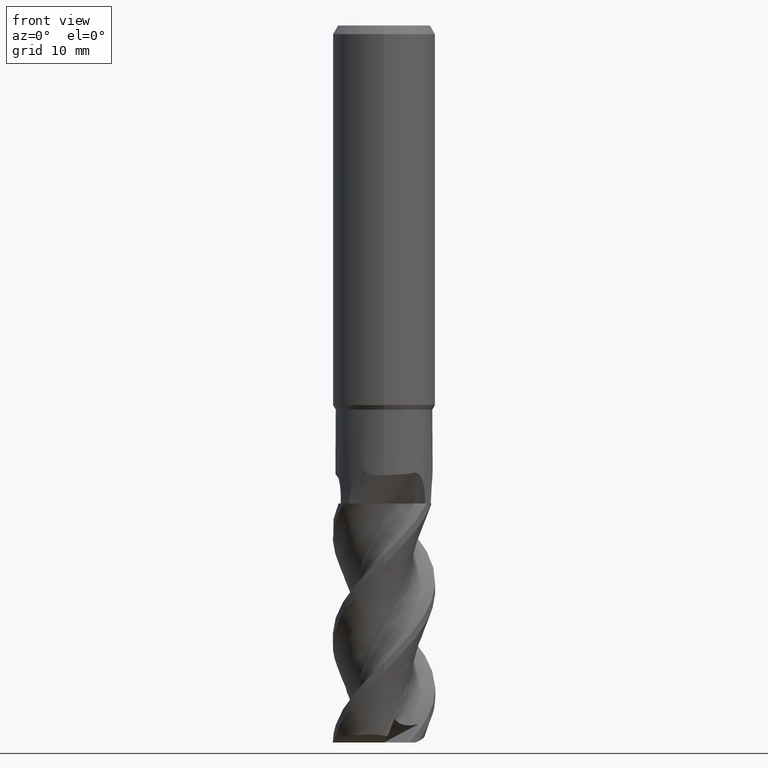
[diagram: clean part render]
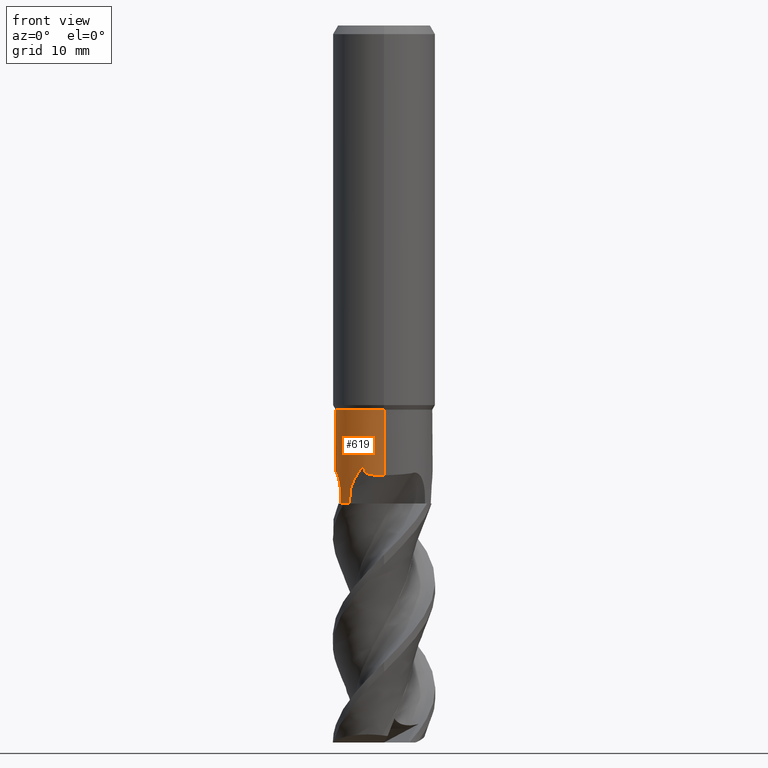
[diagram: same view with one face highlighted and labeled with its STEP entity id]
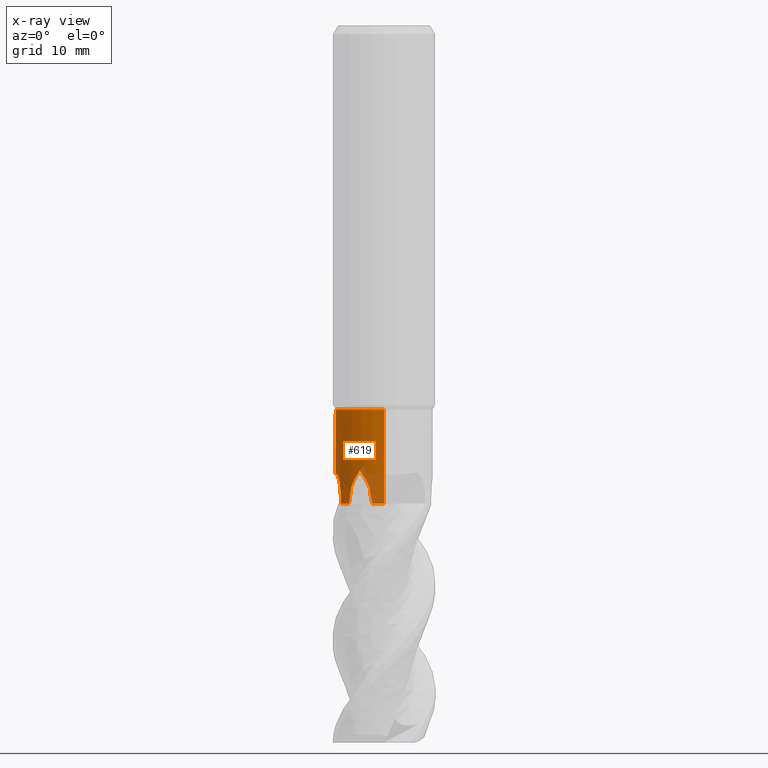
[diagram: x-ray of the same camera — body ghosted, the highlighted face saturated]
A machine part, front view. The second image highlights one B-rep face of the part: STEP entity #619.
The next image is the same camera in x-ray: the body ghosted, the highlighted face saturated — about 12% of this face is hidden behind the body in this view.
In plain terms, the highlighted cylindrical surface (partial cylindrical patch) has radius 5.7 mm, axis along (-0, -0, 1).
Its self-contained STEP definition (entity closure, byte-faithful):
#493=EDGE_CURVE('',#731,#797,#1363,.T.);
#583=EDGE_CURVE('',#797,#1101,#1462,.T.);
#591=VERTEX_POINT('',#1470);
#619=ADVANCED_FACE('',(#1501),#1502,.T.);
#623=EDGE_CURVE('',#1053,#1059,#1506,.T.);
#681=VERTEX_POINT('',#1566);
#693=VERTEX_POINT('',#1578);
#709=EDGE_CURVE('',#875,#591,#1594,.T.);
#731=VERTEX_POINT('',#1618);
#781=EDGE_CURVE('',#681,#1167,#1674,.T.);
#797=VERTEX_POINT('',#1691);
#853=VERTEX_POINT('',#1754);
#865=EDGE_CURVE('',#1059,#681,#1767,.T.);
#867=EDGE_CURVE('',#1053,#975,#1769,.T.);
#875=VERTEX_POINT('',#1777);
#899=VERTEX_POINT('',#1804);
#935=EDGE_CURVE('',#1101,#899,#1842,.T.);
#975=VERTEX_POINT('',#1883);
#985=EDGE_CURVE('',#853,#975,#1894,.T.);
#1053=VERTEX_POINT('',#1969);
#1059=VERTEX_POINT('',#1976);
#1095=EDGE_CURVE('',#875,#731,#2019,.T.);
#1101=VERTEX_POINT('',#2025);
#1167=VERTEX_POINT('',#2095);
#1227=EDGE_CURVE('',#1167,#693,#2161,.T.);
#1247=EDGE_CURVE('',#899,#853,#2182,.T.);
#1295=EDGE_CURVE('',#693,#591,#2240,.T.);
#1363=B_SPLINE_CURVE_WITH_KNOTS('',3,(#3005,#3006,#3007,#3008,#3009,#3010,#3011,#3012,#3013,#3014,#3015,#3016,#3017,#3018,#3019,#3020,#3021,#3022,#3023,#3024,#3025,#3026,#3027,#3028,#3029,#3030,#3031,#3032,#3033,#3034,#3035,#3036,#3037,#3038,#3039,#3040,#3041,#3042,#3043,#3044,#3045,#3046,#3047,#3048,#3049,#3050),.UNSPECIFIED.,.F.,.F.,(4,2,2,2,2,2,2,2,2,2,2,2,2,2,2,2,2,2,2,2,2,2,4),(0.0,0.0210237726188965,0.0477215632171215,0.0958774368035143,0.220134513835847,0.630328034063689,1.22417807423503,1.26687104570242,1.28349811134588,1.29348722388232,1.30406900676357,1.31802845558431,1.34809899808856,1.48768195524747,1.80150197706546,1.93743436439911,1.97529626330379,1.99556157061178,2.00993350224244,2.02378260851786,2.0426742206262,2.07908239423967,2.16361225765625),.UNSPECIFIED.);
#1462=B_SPLINE_CURVE_WITH_KNOTS('',3,(#3779,#3780,#3781,#3782,#3783,#3784,#3785,#3786,#3787,#3788,#3789,#3790,#3791,#3792,#3793,#3794),.UNSPECIFIED.,.F.,.F.,(4,2,2,2,2,2,2,4),(0.0,0.319208745488988,0.586412959398004,0.903849423234765,1.44463094120811,2.48440049660311,3.67406009573202,4.86729140007779),.UNSPECIFIED.);
#1470=CARTESIAN_POINT('',(-5.061404709849,-2.62137604429779,-56.0000000000008));
#1501=FACE_OUTER_BOUND('',#4032,.T.);
#1502=CYLINDRICAL_SURFACE('',#4033,5.69995);
#1506=B_SPLINE_CURVE_WITH_KNOTS('',3,(#4052,#4053,#4054,#4055),.UNSPECIFIED.,.F.,.F.,(4,4),(0.0,2.38754663582606),.UNSPECIFIED.);
#1566=CARTESIAN_POINT('',(-3.3353444809108,4.62221886069427,-51.9560932133779));
#1578=CARTESIAN_POINT('',(-5.06937890964709,-2.60592161680378,-55.0896071720521));
#1594=CIRCLE('',#4315,5.69995);
#1618=CARTESIAN_POINT('',(-3.88148456809594,-4.17414752376256,-54.5000919265964));
#1674=B_SPLINE_CURVE_WITH_KNOTS('',3,(#4584,#4585,#4586,#4587,#4588,#4589,#4590,#4591,#4592,#4593,#4594,#4595,#4596,#4597,#4598,#4599),.UNSPECIFIED.,.F.,.F.,(4,2,2,2,2,2,2,4),(0.0,0.31920874554073,0.586412959537078,0.903849423479734,1.44463094164456,2.48440049743675,3.67406009702054,4.86729140182254),.UNSPECIFIED.);
#1691=CARTESIAN_POINT('',(-2.33528671475736,-5.19960248118813,-51.9560932133759));
#1754=CARTESIAN_POINT('',(0.0,5.69995,-45.0));
#1767=B_SPLINE_CURVE_WITH_KNOTS('',3,(#4862,#4863,#4864,#4865,#4866,#4867,#4868,#4869,#4870,#4871,#4872,#4873,#4874,#4875,#4876,#4877,#4878,#4879,#4880,#4881,#4882,#4883,#4884,#4885,#4886,#4887,#4888,#4889,#4890,#4891,#4892,#4893,#4894,#4895,#4896,#4897,#4898,#4899,#4900,#4901,#4902,#4903,#4904,#4905,#4906,#4907),.UNSPECIFIED.,.F.,.F.,(4,2,2,2,2,2,2,2,2,2,2,2,2,2,2,2,2,2,2,2,2,2,4),(0.0,0.0210237726192092,0.0477215632176557,0.0958774367990393,0.220134513826587,0.630328034035104,1.22417807417707,1.26687104562965,1.28349811129127,1.29348722383427,1.30406900670897,1.31802845552996,1.34809899804223,1.48768195523799,1.80150197712534,1.93743436449348,1.9752962634058,1.99556157071621,2.0099335023503,2.02378260862925,2.04267422074028,2.0790823943595,2.16361225779655),.UNSPECIFIED.);
#1769=CIRCLE('',#4910,5.69995);
#1777=CARTESIAN_POINT('',(-4.10320284150475,-3.95640701191969,-56.0));
#1804=CARTESIAN_POINT('',(6.98019498646986E-016,-5.69995,-45.0));
#1842=LINE('',#5565,#5566);
#1883=CARTESIAN_POINT('',(-6.9888358090682E-016,5.69995,-56.0));
#1894=LINE('',#5767,#5768);
#1969=CARTESIAN_POINT('',(-1.37474755928138,5.53168140358335,-56.0000000000008));
#1976=CARTESIAN_POINT('',(-1.67417551067448,5.44853800224958,-54.5000919265982));
#2019=B_SPLINE_CURVE_WITH_KNOTS('',3,(#6563,#6564,#6565,#6566),.UNSPECIFIED.,.F.,.F.,(4,4),(0.0,2.38754663583841),.UNSPECIFIED.);
#2025=CARTESIAN_POINT('',(8.56422809041974E-015,-5.69995,-52.6914200374324));
#2095=CARTESIAN_POINT('',(-5.6822583330608,-0.448742954107461,-52.4613700765066));
#2161=B_SPLINE_CURVE_WITH_KNOTS('',3,(#7223,#7224,#7225,#7226,#7227,#7228,#7229,#7230,#7231,#7232,#7233,#7234,#7235,#7236),.UNSPECIFIED.,.F.,.F.,(4,2,2,2,2,2,4),(0.0,0.542541046600874,1.01275776614461,1.53435956681876,2.27781040110963,3.13136027619163,4.02982234283832),.UNSPECIFIED.);
#2182=CIRCLE('',#7384,5.69995);
#2240=B_SPLINE_CURVE_WITH_KNOTS('',3,(#9036,#9037,#9038,#9039),.UNSPECIFIED.,.F.,.F.,(4,4),(0.0,0.910550026187551),.UNSPECIFIED.);
#3005=CARTESIAN_POINT('',(-3.88148456809607,-4.17414752376244,-54.5000919265967));
#3006=CARTESIAN_POINT('',(-3.88585858026421,-4.17008018770528,-54.4964264393668));
#3007=CARTESIAN_POINT('',(-3.8895483589407,-4.1666367127797,-54.4916927915519));
#3008=CARTESIAN_POINT('',(-3.89656955537789,-4.16007266970402,-54.4790165461536));
#3009=CARTESIAN_POINT('',(-3.89939015057975,-4.15742640201785,-54.4708148635163));
#3010=CARTESIAN_POINT('',(-3.90511061330717,-4.15205570555244,-54.4471322451704));
#3011=CARTESIAN_POINT('',(-3.9065226892729,-4.1507241153387,-54.4299655624012));
#3012=CARTESIAN_POINT('',(-3.90769136538664,-4.14962402313297,-54.3725833026523));
#3013=CARTESIAN_POINT('',(-3.90158339312376,-4.15537781675788,-54.3246124232474));
#3014=CARTESIAN_POINT('',(-3.87216154379221,-4.18291184276959,-54.1514277326859));
#3015=CARTESIAN_POINT('',(-3.81921214307349,-4.23258370534582,-53.9686194893526));
#3016=CARTESIAN_POINT('',(-3.61917343335598,-4.40631024576677,-53.4394741998434));
#3017=CARTESIAN_POINT('',(-3.44787376717911,-4.54578016330074,-53.0770262033943));
#3018=CARTESIAN_POINT('',(-3.2274387783533,-4.69823286665237,-52.6991814689535));
#3019=CARTESIAN_POINT('',(-3.21249076232383,-4.7084674498623,-52.6739170782215));
#3020=CARTESIAN_POINT('',(-3.19151239865918,-4.72268240120515,-52.6389668330051));
#3021=CARTESIAN_POINT('',(-3.18560763401354,-4.72666743400469,-52.6291841366408));
#3022=CARTESIAN_POINT('',(-3.17611732477332,-4.73304628743022,-52.6135495432315));
#3023=CARTESIAN_POINT('',(-3.1725466665844,-4.73544044358439,-52.607687004611));
#3024=CARTESIAN_POINT('',(-3.16517551122482,-4.74037074449782,-52.5956257252994));
#3025=CARTESIAN_POINT('',(-3.1613736461048,-4.74290708682597,-52.5894271825433));
#3026=CARTESIAN_POINT('',(-3.15253348591678,-4.74878922489577,-52.5750665027719));
#3027=CARTESIAN_POINT('',(-3.14748723021468,-4.75213541190307,-52.5669080767209));
#3028=CARTESIAN_POINT('',(-3.13151617252117,-4.76268909218551,-52.5412119203943));
#3029=CARTESIAN_POINT('',(-3.12052258919394,-4.76989972138914,-52.5237069676643));
#3030=CARTESIAN_POINT('',(-3.05804678066643,-4.8105656122809,-52.4252862550635));
#3031=CARTESIAN_POINT('',(-3.00424212231989,-4.84439267119813,-52.3445399508742));
#3032=CARTESIAN_POINT('',(-2.82449861759144,-4.95305680567769,-52.0905102475453));
#3033=CARTESIAN_POINT('',(-2.70775640885152,-5.01697683636157,-51.9492672362148));
#3034=CARTESIAN_POINT('',(-2.56487583487321,-5.0905010185007,-51.8090872995905));
#3035=CARTESIAN_POINT('',(-2.49949654689486,-5.12311324442961,-51.7499971358931));
#3036=CARTESIAN_POINT('',(-2.42335528601759,-5.15917784564474,-51.7115113305488));
#3037=CARTESIAN_POINT('',(-2.40437474986025,-5.16805715283412,-51.7039380543336));
#3038=CARTESIAN_POINT('',(-2.37639695824961,-5.18095385602172,-51.7002791111682));
#3039=CARTESIAN_POINT('',(-2.36629660116446,-5.18557419739067,-51.700414317119));
#3040=CARTESIAN_POINT('',(-2.35002220747199,-5.19296453182415,-51.7051508721511));
#3041=CARTESIAN_POINT('',(-2.34379642089092,-5.19577572385133,-51.7083730631548));
#3042=CARTESIAN_POINT('',(-2.33289863773779,-5.20067768044026,-51.7175458305352));
#3043=CARTESIAN_POINT('',(-2.3285284793439,-5.20263397165974,-51.7230983616132));
#3044=CARTESIAN_POINT('',(-2.3201353790314,-5.20638357786289,-51.737963998561));
#3045=CARTESIAN_POINT('',(-2.31692907625771,-5.20780904429373,-51.7477154165722));
#3046=CARTESIAN_POINT('',(-2.31072240303501,-5.21056733711685,-51.7764368864798));
#3047=CARTESIAN_POINT('',(-2.31022810833282,-5.21078469602377,-51.7976400010034));
#3048=CARTESIAN_POINT('',(-2.31335185142962,-5.20939909384176,-51.8620130507228));
#3049=CARTESIAN_POINT('',(-2.32402634115784,-5.20465982950761,-51.9127892903381));
#3050=CARTESIAN_POINT('',(-2.33528671475721,-5.1996024811882,-51.9560932133757));
#3779=CARTESIAN_POINT('',(-2.33528671371195,-5.19960248165765,-51.9560932118612));
#3780=CARTESIAN_POINT('',(-2.32130442749482,-5.20588231696148,-52.0613863251017));
#3781=CARTESIAN_POINT('',(-2.29421616406499,-5.21804693468987,-52.1503900429818));
#3782=CARTESIAN_POINT('',(-2.21853088175986,-5.25061522924738,-52.2898076956611));
#3783=CARTESIAN_POINT('',(-2.17447217531952,-5.26919584392274,-52.3435079743858));
#3784=CARTESIAN_POINT('',(-2.05738229119267,-5.31613576460572,-52.4440763179353));
#3785=CARTESIAN_POINT('',(-1.9834676247433,-5.34433227588149,-52.4850580100344));
#3786=CARTESIAN_POINT('',(-1.77646260727128,-5.41781957930681,-52.5713945668626));
#3787=CARTESIAN_POINT('',(-1.61920053191238,-5.46807901032385,-52.6075182639015));
#3788=CARTESIAN_POINT('',(-1.11134253000158,-5.60121763032169,-52.68177600615));
#3789=CARTESIAN_POINT('',(-0.669107744816747,-5.68449120864454,-52.6974353337586));
#3790=CARTESIAN_POINT('',(0.448185766364343,-5.71351563785523,-52.6882651168868));
#3791=CARTESIAN_POINT('',(1.04535792251202,-5.63508658439011,-52.6601800038733));
#3792=CARTESIAN_POINT('',(2.19374282976598,-5.29496142782866,-52.5807576936061));
#3793=CARTESIAN_POINT('',(2.73754270474989,-5.03508981414906,-52.5284448898474));
#3794=CARTESIAN_POINT('',(3.22975196455679,-4.69660859024273,-52.4613700765046));
#4032=EDGE_LOOP('',(#9439,#9440,#9441,#9442,#9443,#9444,#9445,#9446,#9447,#9448,#9449,#9450,#9451));
#4033=AXIS2_PLACEMENT_3D('',#9452,#9453,#9454);
#4052=CARTESIAN_POINT('',(-1.37474755928139,5.53168140358335,-56.0000000000008));
#4053=CARTESIAN_POINT('',(-1.58322639936998,5.47986971095985,-55.2336922554716));
#4054=CARTESIAN_POINT('',(-1.65923013780128,5.45313027585288,-54.7962236187406));
#4055=CARTESIAN_POINT('',(-1.67417550958116,5.44853800258552,-54.5000919281825));
#4315=AXIS2_PLACEMENT_3D('',#9507,#9508,#9509);
#4584=CARTESIAN_POINT('',(-3.33534448184012,4.62221886002369,-51.9560932118632));
#4585=CARTESIAN_POINT('',(-3.34777412185539,4.61324976260713,-52.0613863251208));
#4586=CARTESIAN_POINT('',(-3.37185312155414,4.59587294719383,-52.1503900429961));
#4587=CARTESIAN_POINT('',(-3.43790073314573,4.54661171730801,-52.2898076956634));
#4588=CARTESIAN_POINT('',(-3.476021370693,4.51774606561027,-52.3435079743882));
#4589=CARTESIAN_POINT('',(-3.57521747651911,4.43981321177205,-52.4440763179373));
#4590=CARTESIAN_POINT('',(-3.63659370480652,4.38989948855267,-52.4850580100363));
#4591=CARTESIAN_POINT('',(-3.80373808516709,4.2473715364215,-52.5713945668659));
#4592=CARTESIAN_POINT('',(-3.92589506688815,4.13630829961587,-52.6075182639041));
#4593=CARTESIAN_POINT('',(-4.29512549498283,3.76305967844856,-52.6817760061519));
#4594=CARTESIAN_POINT('',(-4.58835992186683,3.42170990920281,-52.6974353337606));
#4595=CARTESIAN_POINT('',(-5.17214257048423,2.46861755964194,-52.6882651168888));
#4596=CARTESIAN_POINT('',(-5.40280709586259,1.91223677525273,-52.6601800038753));
#4597=CARTESIAN_POINT('',(-5.68244252344131,0.747643693967187,-52.5807576936081));
#4598=CARTESIAN_POINT('',(-5.72928704176428,0.146763380816392,-52.5284448898493));
#4599=CARTESIAN_POINT('',(-5.68225833306079,-0.448742954107504,-52.4613700765065));
#4862=CARTESIAN_POINT('',(-1.67417551067425,5.44853800224965,-54.5000919265985));
#4863=CARTESIAN_POINT('',(-1.66846608823886,5.45029233987517,-54.4964264393685));
#4864=CARTESIAN_POINT('',(-1.66363906213774,5.45176604448058,-54.4916927915535));
#4865=CARTESIAN_POINT('',(-1.65444383586443,5.45456455742219,-54.4790165461557));
#4866=CARTESIAN_POINT('',(-1.65074180322207,5.45568413067772,-54.4708148635193));
#4867=CARTESIAN_POINT('',(-1.64323041228288,5.45795284848849,-54.4471322451721));
#4868=CARTESIAN_POINT('',(-1.64137118334764,5.45850994703996,-54.4299655624019));
#4869=CARTESIAN_POINT('',(-1.63983413749412,5.45897200414038,-54.3725833026542));
#4870=CARTESIAN_POINT('',(-1.64787105507281,5.4565592418076,-54.3246124232494));
#4871=CARTESIAN_POINT('',(-1.68642714573302,5.44484618586606,-54.1514277326887));
#4872=CARTESIAN_POINT('',(-1.75591894093617,5.42382659101679,-53.968619489356));
#4873=CARTESIAN_POINT('',(-2.00638989311182,5.33745125687138,-53.4394741998451));
#4874=CARTESIAN_POINT('',(-2.21282421784872,5.25883635306922,-53.0770262033955));
#4875=CARTESIAN_POINT('',(-2.4550696262347,5.14416040454132,-52.6991814689626));
#4876=CARTESIAN_POINT('',(-2.471407043308,5.13633233452787,-52.6739170782279));
#4877=CARTESIAN_POINT('',(-2.49420673412818,5.12527201433038,-52.6389668329942));
#4878=CARTESIAN_POINT('',(-2.50061025608571,5.12215085454585,-52.629184136637));
#4879=CARTESIAN_POINT('',(-2.5108796598104,5.11712143237119,-52.6135495432413));
#4880=CARTESIAN_POINT('',(-2.51473838895714,5.11522622974741,-52.6076870046175));
#4881=CARTESIAN_POINT('',(-2.52269373247541,5.1113077724079,-52.5956257253072));
#4882=CARTESIAN_POINT('',(-2.52679120192575,5.10928343179557,-52.5894271825489));
#4883=CARTESIAN_POINT('',(-2.53630536302355,5.10456869753077,-52.5750665027672));
#4884=CARTESIAN_POINT('',(-2.54172637382573,5.10187160540386,-52.5669080767208));
#4885=CARTESIAN_POINT('',(-2.55885165789409,5.0933171038604,-52.5412119204038));
#4886=CARTESIAN_POINT('',(-2.5705930376255,5.08740169602216,-52.5237069676734));
#4887=CARTESIAN_POINT('',(-2.63704863646958,5.05362900416105,-52.4252862550717));
#4888=CARTESIAN_POINT('',(-2.69324605799996,5.02394633264995,-52.344539950883));
#4889=CARTESIAN_POINT('',(-2.87722371129683,4.9226159586337,-52.0905102475631));
#4890=CARTESIAN_POINT('',(-2.99095118604621,4.85347425551569,-51.9492672362353));
#4891=CARTESIAN_POINT('',(-3.1260652825602,4.76649813981346,-51.8090872996072));
#4892=CARTESIAN_POINT('',(-3.18699794268389,4.72618412850359,-51.7499971359014));
#4893=CARTESIAN_POINT('',(-3.25630143395807,4.67827616291127,-51.7115113305523));
#4894=CARTESIAN_POINT('',(-3.27348140763132,4.66627819001586,-51.7039380543364));
#4895=CARTESIAN_POINT('',(-3.2986391760224,4.64849706333291,-51.7002791111703));
#4896=CARTESIAN_POINT('',(-3.3076906875655,4.64206006819375,-51.7004143171205));
#4897=CARTESIAN_POINT('',(-3.32222810177522,4.63166119704047,-51.7051508721526));
#4898=CARTESIAN_POINT('',(-3.32777555877558,4.62767510371673,-51.7083730631564));
#4899=CARTESIAN_POINT('',(-3.33746966928604,4.62068832495591,-51.717545830536));
#4900=CARTESIAN_POINT('',(-3.34134894637629,4.61788180237799,-51.7230983616133));
#4901=CARTESIAN_POINT('',(-3.34879275075913,4.61248796739209,-51.7379639985612));
#4902=CARTESIAN_POINT('',(-3.35163039228737,4.61042396095321,-51.7477154165724));
#4903=CARTESIAN_POINT('',(-3.35712248055475,4.60642797068083,-51.7764368864782));
#4904=CARTESIAN_POINT('',(-3.3575578662413,4.60610857836502,-51.7976400010005));
#4905=CARTESIAN_POINT('',(-3.35479602800461,4.6081210181501,-51.8620130507205));
#4906=CARTESIAN_POINT('',(-3.34535445983147,4.61499576526038,-51.9127892903383));
#4907=CARTESIAN_POINT('',(-3.335344480911,4.62221886069413,-51.9560932133776));
#4910=AXIS2_PLACEMENT_3D('',#9745,#9746,#9747);
#5565=CARTESIAN_POINT('',(6.97155416387152E-016,-5.69995,-50.5));
#5566=VECTOR('',#9808,1.0);
#5767=CARTESIAN_POINT('',(-6.9888358090682E-016,5.69995,-50.5));
#5768=VECTOR('',#9847,1.0);
#6563=CARTESIAN_POINT('',(-4.10320284150457,-3.95640701191989,-55.999999999999));
#6564=CARTESIAN_POINT('',(-3.95409317943449,-4.11104913727717,-55.2336922554658));
#6565=CARTESIAN_POINT('',(-3.89293428013404,-4.16350058798707,-54.7962236187367));
#6566=CARTESIAN_POINT('',(-3.88148456893353,-4.17414752298369,-54.5000919281808));
#7223=CARTESIAN_POINT('',(-5.68225833306231,-0.448742954088357,-52.4613700767757));
#7224=CARTESIAN_POINT('',(-5.66880887526894,-0.619048232255522,-52.4020331798153));
#7225=CARTESIAN_POINT('',(-5.6471044681355,-0.795106485057276,-52.3711232135324));
#7226=CARTESIAN_POINT('',(-5.58961876512305,-1.12696256940995,-52.3874368307954));
#7227=CARTESIAN_POINT('',(-5.55762633091236,-1.27380647313722,-52.4244357796398));
#7228=CARTESIAN_POINT('',(-5.48306038030547,-1.56541879693557,-52.560177736181));
#7229=CARTESIAN_POINT('',(-5.44159769545368,-1.70122933746981,-52.661938263992));
#7230=CARTESIAN_POINT('',(-5.34444542651565,-1.98954843217951,-52.9537462704809));
#7231=CARTESIAN_POINT('',(-5.29023459149794,-2.12515300710107,-53.1631594819891));
#7232=CARTESIAN_POINT('',(-5.19277430716027,-2.35419280608448,-53.6357732809286));
#7233=CARTESIAN_POINT('',(-5.15029222687558,-2.44303806721884,-53.911475297581));
#7234=CARTESIAN_POINT('',(-5.08971660490954,-2.56694712566283,-54.483474216168));
#7235=CARTESIAN_POINT('',(-5.07214605777214,-2.60053859904333,-54.7871749290023));
#7236=CARTESIAN_POINT('',(-5.06937890969281,-2.60592161671484,-55.0896071720525));
#7384=AXIS2_PLACEMENT_3D('',#10165,#10166,#10167);
#9036=CARTESIAN_POINT('',(-5.06937890964709,-2.60592161680379,-55.0896071720521));
#9037=CARTESIAN_POINT('',(-5.0666023953729,-2.61132285481998,-55.3930630829184));
#9038=CARTESIAN_POINT('',(-5.06394255776448,-2.61647591735103,-55.6965333645945));
#9039=CARTESIAN_POINT('',(-5.06140470984901,-2.62137604429778,-56.0));
#9439=ORIENTED_EDGE('',*,*,#985,.T.);
#9440=ORIENTED_EDGE('',*,*,#867,.F.);
#9441=ORIENTED_EDGE('',*,*,#623,.T.);
#9442=ORIENTED_EDGE('',*,*,#865,.T.);
#9443=ORIENTED_EDGE('',*,*,#781,.T.);
#9444=ORIENTED_EDGE('',*,*,#1227,.T.);
#9445=ORIENTED_EDGE('',*,*,#1295,.T.);
#9446=ORIENTED_EDGE('',*,*,#709,.F.);
#9447=ORIENTED_EDGE('',*,*,#1095,.T.);
#9448=ORIENTED_EDGE('',*,*,#493,.T.);
#9449=ORIENTED_EDGE('',*,*,#583,.T.);
#9450=ORIENTED_EDGE('',*,*,#935,.T.);
#9451=ORIENTED_EDGE('',*,*,#1247,.T.);
#9452=CARTESIAN_POINT('',(0.0,0.0,-50.5));
#9453=DIRECTION('',(-0.0,-0.0,1.0));
#9454=DIRECTION('',(0.0,1.0,0.0));
#9507=CARTESIAN_POINT('',(0.0,0.0,-56.0));
#9508=DIRECTION('',(0.0,0.0,-1.0));
#9509=DIRECTION('',(0.0,1.0,0.0));
#9745=CARTESIAN_POINT('',(0.0,0.0,-56.0));
#9746=DIRECTION('',(0.0,0.0,-1.0));
#9747=DIRECTION('',(0.0,1.0,0.0));
#9808=DIRECTION('',(-0.0,-0.0,1.0));
#9847=DIRECTION('',(0.0,0.0,-1.0));
#10165=CARTESIAN_POINT('',(0.0,0.0,-45.0));
#10166=DIRECTION('',(0.0,0.0,-1.0));
#10167=DIRECTION('',(0.0,1.0,0.0));